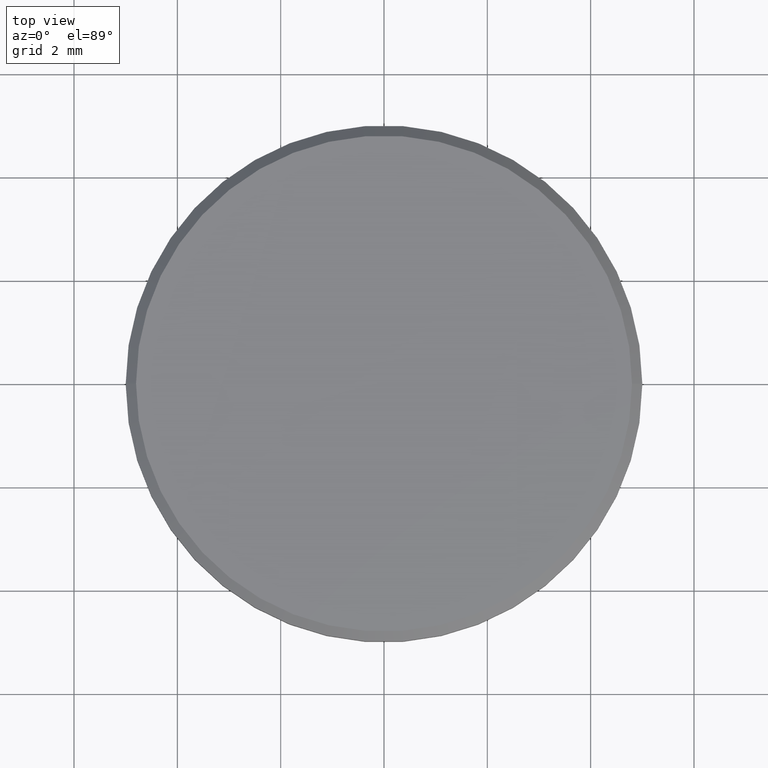
[diagram: clean part render]
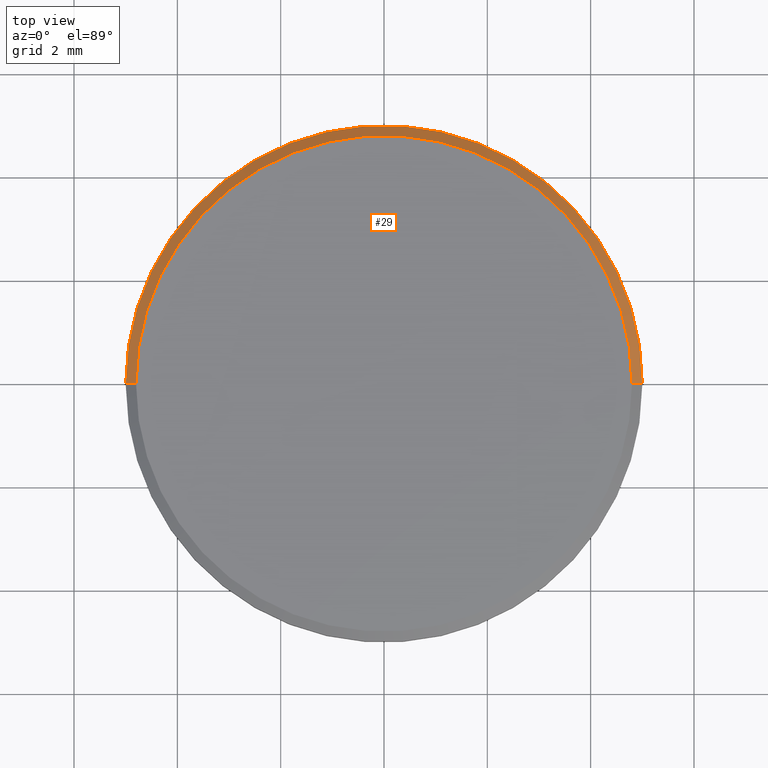
[diagram: same view with one face highlighted and labeled with its STEP entity id]
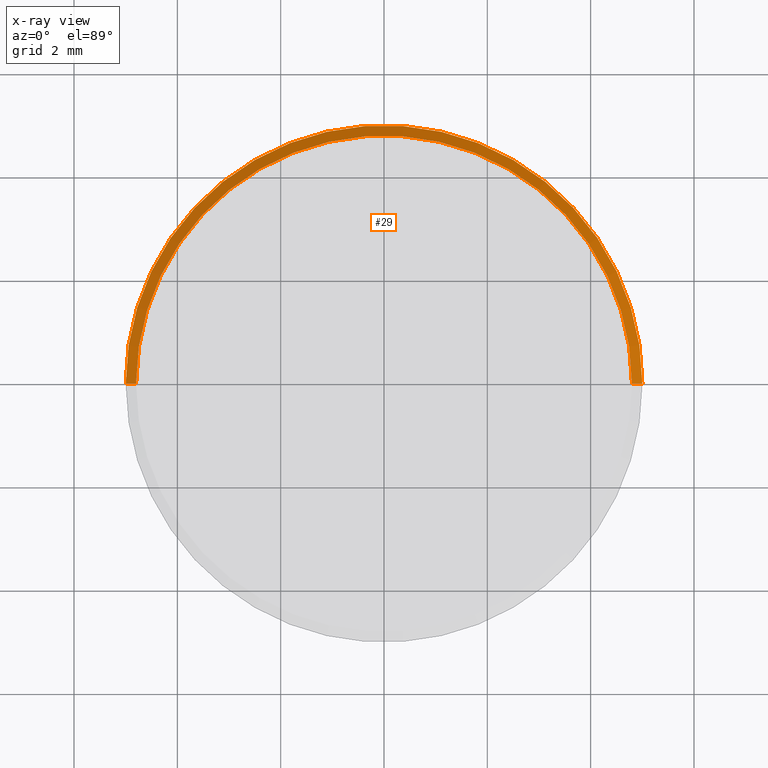
[diagram: x-ray of the same camera — body ghosted, the highlighted face saturated]
A machine part, top view. The second image highlights one B-rep face of the part: STEP entity #29.
The next image is the same camera in x-ray: the body ghosted, the highlighted face saturated — about 0% of this face is hidden behind the body in this view.
In plain terms, the highlighted conical surface has half-angle 45 deg.
Its self-contained STEP definition (entity closure, byte-faithful):
#1 = CONICAL_SURFACE ( 'NONE', #37, 4.800000000000002487, 0.7853981633974461696 ) ;
#6 = ORIENTED_EDGE ( 'NONE', *, *, #63, .F. ) ;
#8 = VECTOR ( 'NONE', #35, 1000.000000000000114 ) ;
#10 = DIRECTION ( 'NONE',  ( -0.7071067811865460184, 0.000000000000000000, -0.7071067811865489050 ) ) ;
#13 = DIRECTION ( 'NONE',  ( 0.000000000000000000, 0.000000000000000000, -1.000000000000000000 ) ) ;
#25 = DIRECTION ( 'NONE',  ( 0.000000000000000000, 0.000000000000000000, -1.000000000000000000 ) ) ;
#26 = VERTEX_POINT ( 'NONE', #173 ) ;
#29 = ADVANCED_FACE ( 'NONE', ( #120 ), #1, .T. ) ;
#31 = LINE ( 'NONE', #125, #69 ) ;
#34 = DIRECTION ( 'NONE',  ( 0.000000000000000000, 0.000000000000000000, 1.000000000000000000 ) ) ;
#35 = DIRECTION ( 'NONE',  ( 0.7071067811865460184, 8.659560562354913137E-17, -0.7071067811865489050 ) ) ;
#37 = AXIS2_PLACEMENT_3D ( 'NONE', #47, #25, #99 ) ;
#44 = EDGE_CURVE ( 'NONE', #26, #122, #171, .T. ) ;
#47 = CARTESIAN_POINT ( 'NONE',  ( 0.000000000000000000, 0.000000000000000000, 1.000000000000000000 ) ) ;
#60 = EDGE_CURVE ( 'NONE', #229, #122, #234, .T. ) ;
#63 = EDGE_CURVE ( 'NONE', #119, #26, #31, .T. ) ;
#68 = EDGE_LOOP ( 'NONE', ( #102, #228, #97, #6 ) ) ;
#69 = VECTOR ( 'NONE', #10, 1000.000000000000114 ) ;
#70 = EDGE_CURVE ( 'NONE', #229, #119, #95, .T. ) ;
#71 = CARTESIAN_POINT ( 'NONE',  ( -4.800000000000002487, 0.000000000000000000, 1.000000000000000000 ) ) ;
#86 = DIRECTION ( 'NONE',  ( 1.000000000000000000, 0.000000000000000000, 0.000000000000000000 ) ) ;
#95 = CIRCLE ( 'NONE', #130, 4.800000000000002487 ) ;
#97 = ORIENTED_EDGE ( 'NONE', *, *, #44, .F. ) ;
#99 = DIRECTION ( 'NONE',  ( -1.000000000000000000, 0.000000000000000000, 0.000000000000000000 ) ) ;
#102 = ORIENTED_EDGE ( 'NONE', *, *, #70, .F. ) ;
#105 = CARTESIAN_POINT ( 'NONE',  ( 0.000000000000000000, 0.000000000000000000, 1.000000000000000000 ) ) ;
#110 = AXIS2_PLACEMENT_3D ( 'NONE', #138, #13, #86 ) ;
#119 = VERTEX_POINT ( 'NONE', #71 ) ;
#120 = FACE_OUTER_BOUND ( 'NONE', #68, .T. ) ;
#122 = VERTEX_POINT ( 'NONE', #126 ) ;
#125 = CARTESIAN_POINT ( 'NONE',  ( -4.800000000000002487, 0.000000000000000000, 1.000000000000000000 ) ) ;
#126 = CARTESIAN_POINT ( 'NONE',  ( 5.000000000000000000, 6.123233995736766282E-16, 0.8000000000000012657 ) ) ;
#130 = AXIS2_PLACEMENT_3D ( 'NONE', #105, #34, #144 ) ;
#138 = CARTESIAN_POINT ( 'NONE',  ( 0.000000000000000000, 0.000000000000000000, 0.8000000000000012657 ) ) ;
#144 = DIRECTION ( 'NONE',  ( 1.000000000000000000, 0.000000000000000000, 0.000000000000000000 ) ) ;
#161 = CARTESIAN_POINT ( 'NONE',  ( 4.800000000000002487, 5.878304635907297169E-16, 1.000000000000000000 ) ) ;
#167 = CARTESIAN_POINT ( 'NONE',  ( 4.800000000000002487, 6.000769315822031726E-16, 1.000000000000000000 ) ) ;
#171 = CIRCLE ( 'NONE', #110, 5.000000000000000000 ) ;
#173 = CARTESIAN_POINT ( 'NONE',  ( -5.000000000000000000, 0.000000000000000000, 0.8000000000000012657 ) ) ;
#228 = ORIENTED_EDGE ( 'NONE', *, *, #60, .T. ) ;
#229 = VERTEX_POINT ( 'NONE', #167 ) ;
#234 = LINE ( 'NONE', #161, #8 ) ;